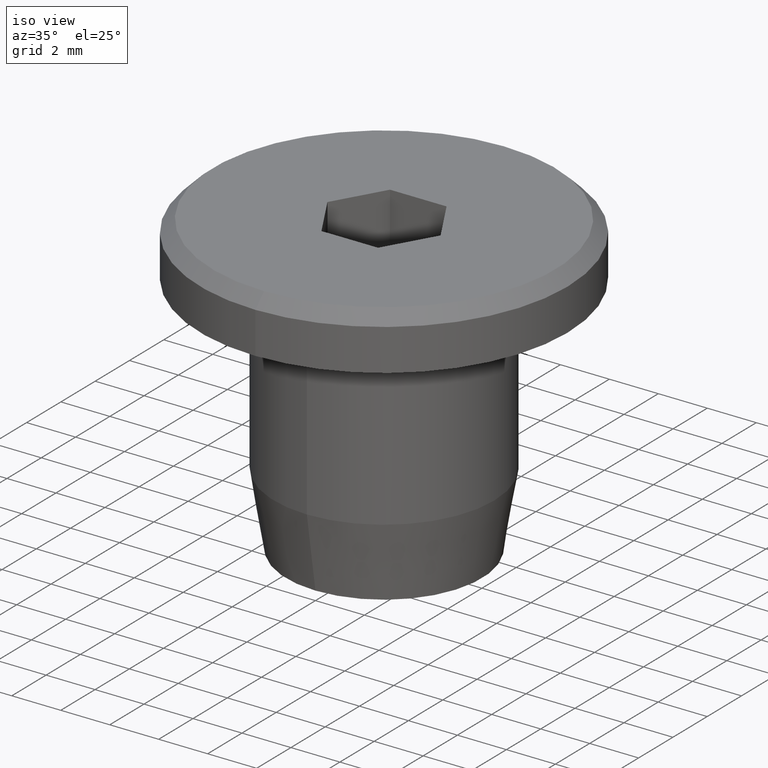
[diagram: clean part render]
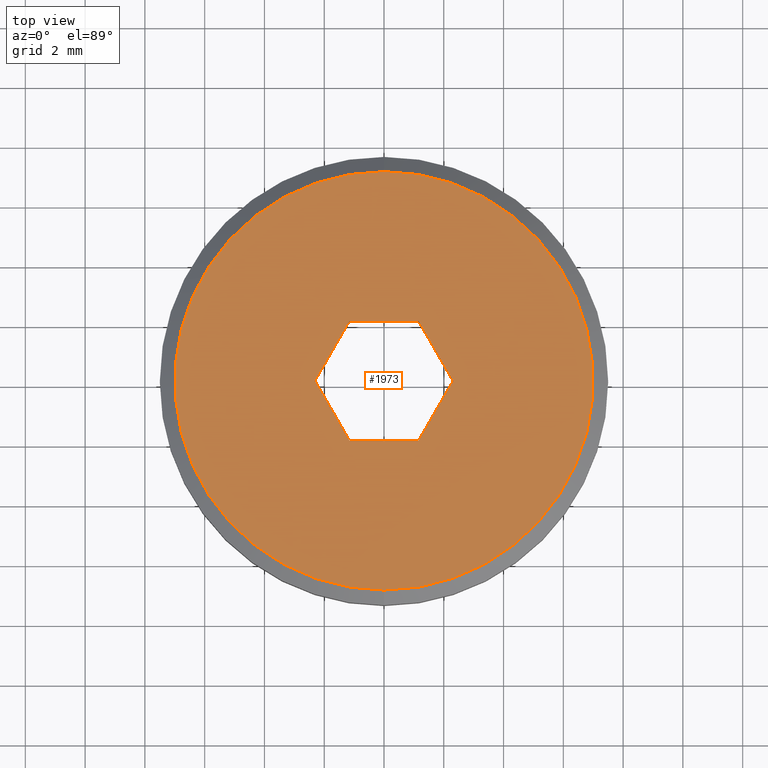
[diagram: tour spotlight — one face highlighted and labeled with its STEP entity id]
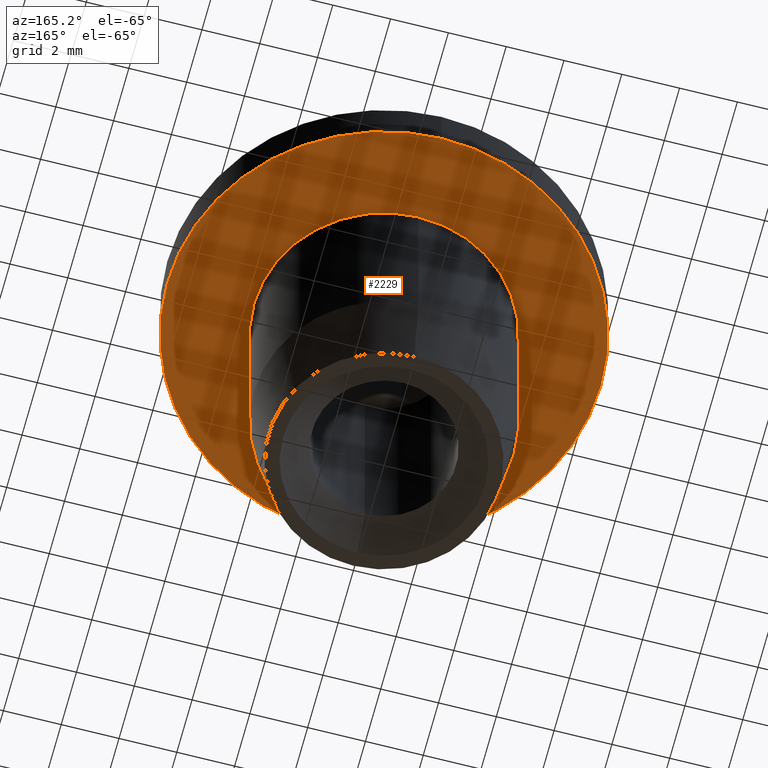
[diagram: tour spotlight — one face highlighted and labeled with its STEP entity id]
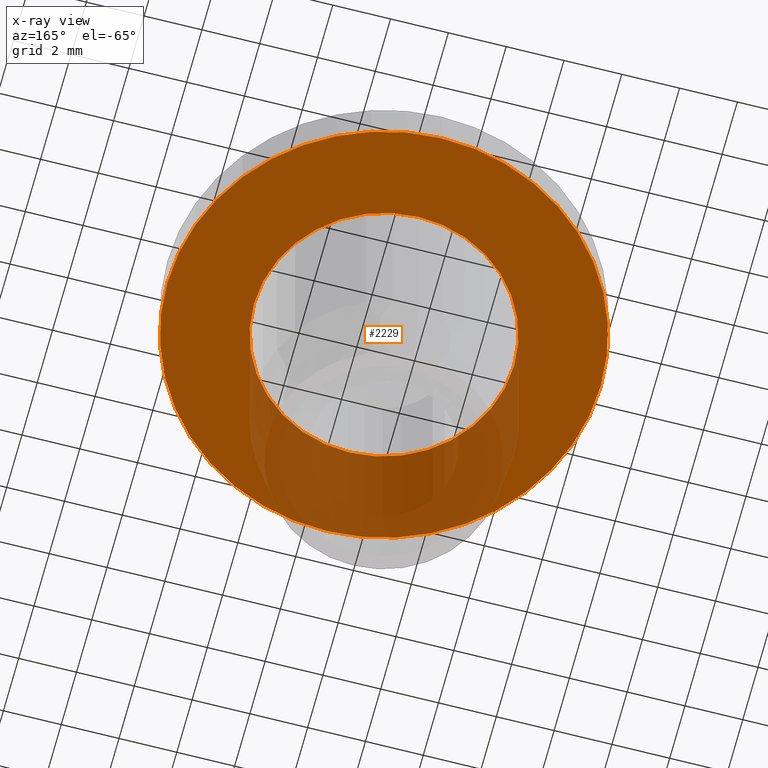
[diagram: x-ray of the same camera — body ghosted, this tour face saturated]
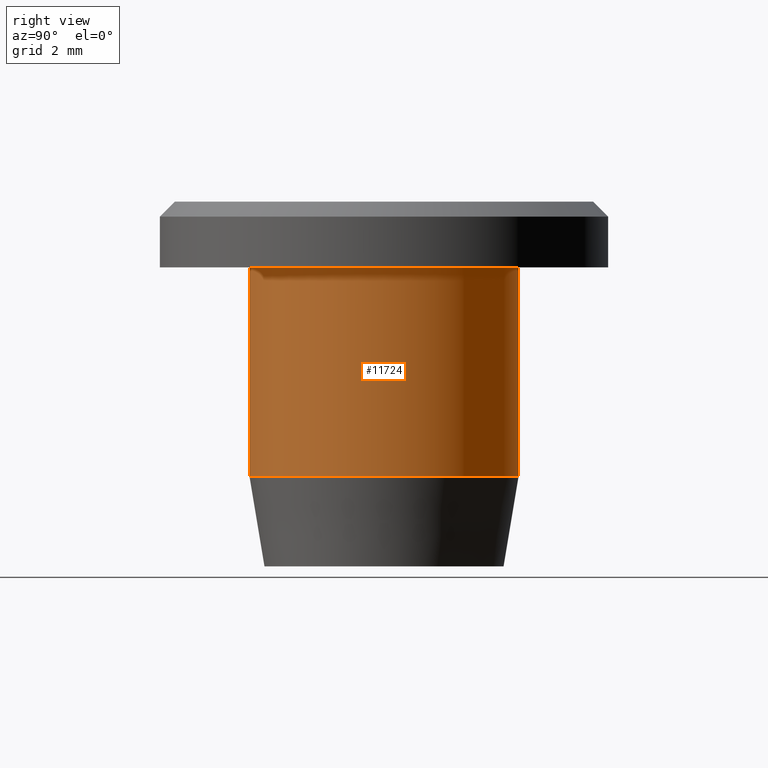
[diagram: tour spotlight — one face highlighted and labeled with its STEP entity id]
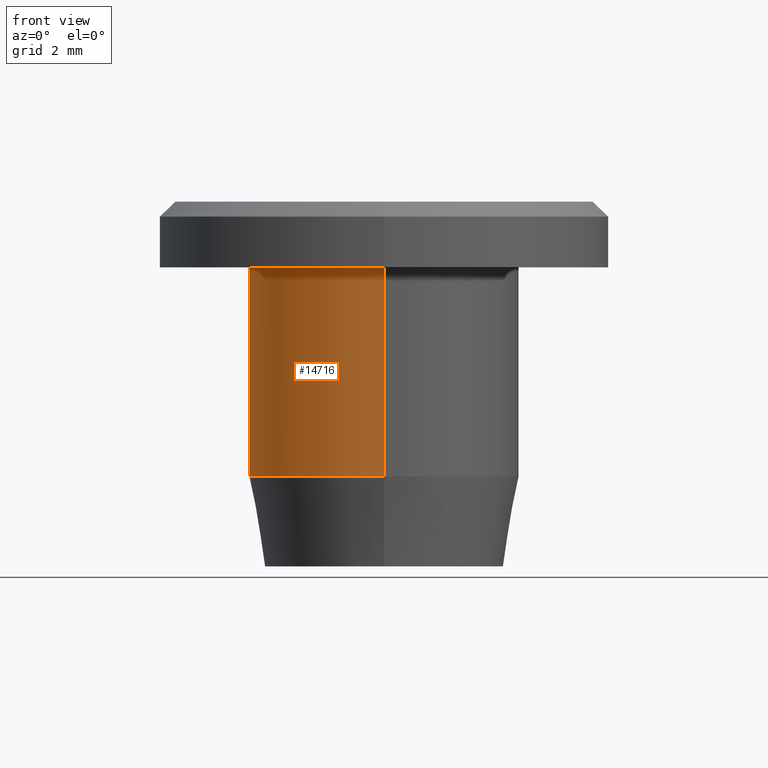
[diagram: tour spotlight — one face highlighted and labeled with its STEP entity id]
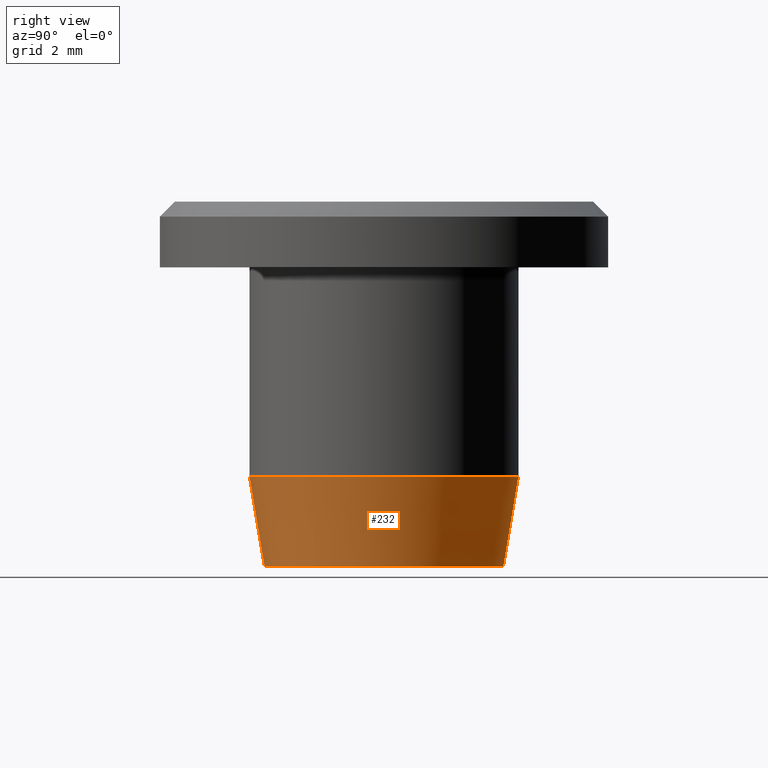
[diagram: tour spotlight — one face highlighted and labeled with its STEP entity id]
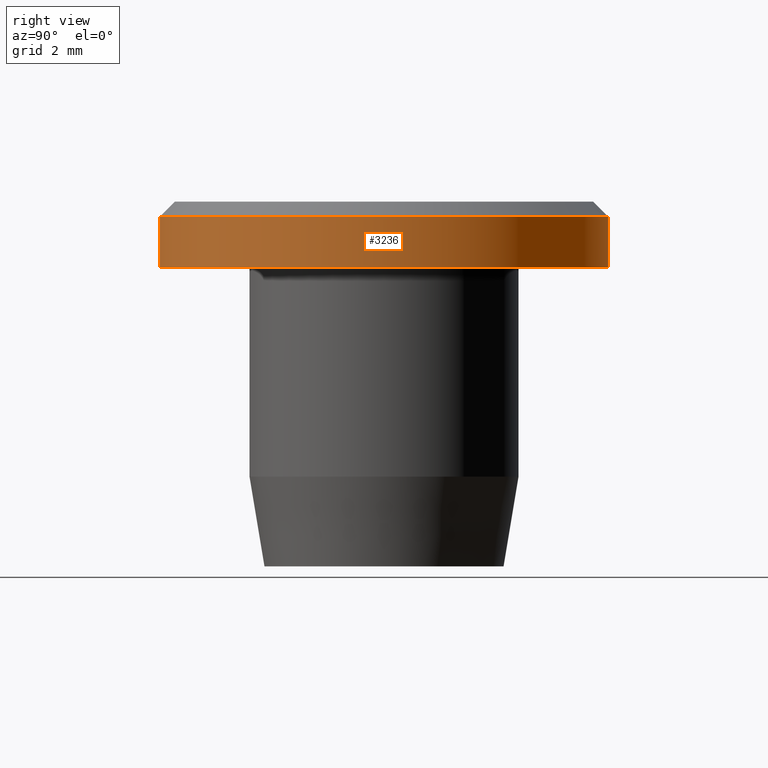
[diagram: tour spotlight — one face highlighted and labeled with its STEP entity id]
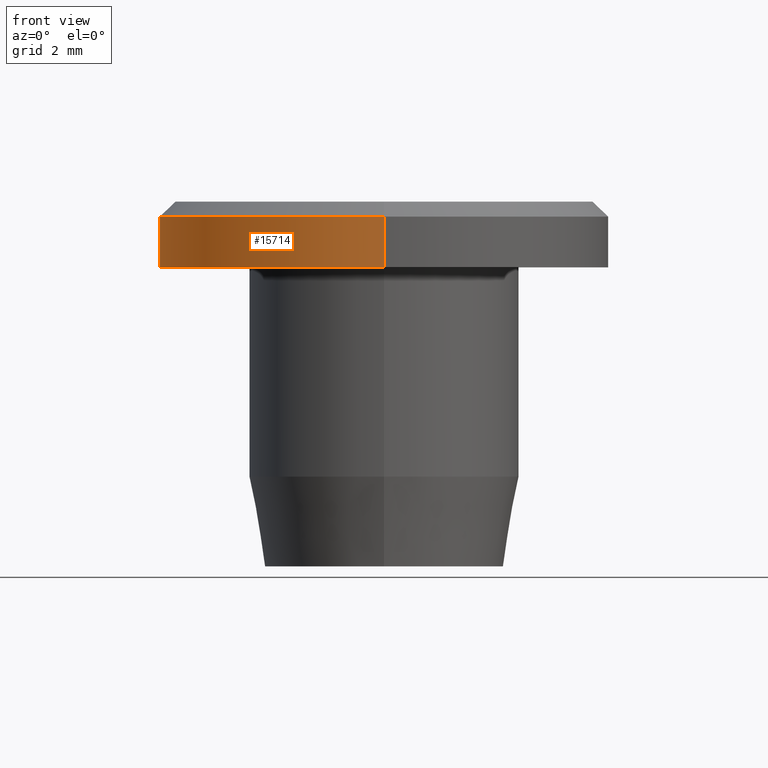
[diagram: tour spotlight — one face highlighted and labeled with its STEP entity id]
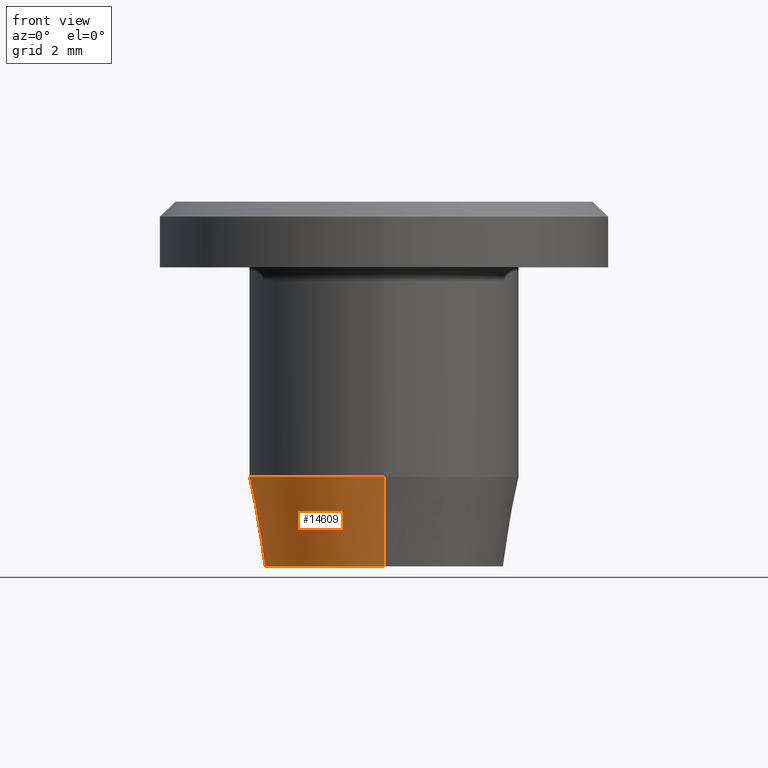
[diagram: tour spotlight — one face highlighted and labeled with its STEP entity id]
A machine part: a face-by-face anatomy tour. The part has 290 B-rep faces; the first image is the clean iso view, then the 8 largest visible faces are spotlighted one at a time (largest first), each with its STEP entity span.

Face 1 — top view, entity #1973. In plain terms, the highlighted planar face has unit normal (0, -0, 1).
Definition (entity closure, byte-faithful):
#157 = DIRECTION ( 'NONE',  ( 0.0000000000000000000, -1.000000000000000000, -3.717264591378871700E-016 ) ) ;
#389 = VERTEX_POINT ( 'NONE', #4939 ) ;
#730 = EDGE_CURVE ( 'NONE', #4751, #11379, #7446, .T. ) ;
#884 = CARTESIAN_POINT ( 'NONE',  ( 2.309401076758503400, 6.534703300250253200E-016, 6.100000000000000500 ) ) ;
#979 = ORIENTED_EDGE ( 'NONE', *, *, #5707, .F. ) ;
#1537 = LINE ( 'NONE', #11249, #13631 ) ;
#1731 = VERTEX_POINT ( 'NONE', #5349 ) ;
#1762 = CARTESIAN_POINT ( 'NONE',  ( -1.154700538379251500, 1.999999999999999600, 6.100000000000000500 ) ) ;
#1813 = DIRECTION ( 'NONE',  ( -0.5000000000000003300, -0.8660254037844384900, 0.0000000000000000000 ) ) ;
#1973 = ADVANCED_FACE ( 'NONE', ( #13743, #15738 ), #15400, .T. ) ;
#2067 = EDGE_CURVE ( 'NONE', #6120, #7556, #9584, .T. ) ;
#2198 = CARTESIAN_POINT ( 'NONE',  ( -2.309401076758503400, 4.688826351693261900E-016, 6.100000000000000500 ) ) ;
#2305 = CARTESIAN_POINT ( 'NONE',  ( 8.878689293818312000E-016, -7.000000000000001800, 6.099999999999997900 ) ) ;
#2729 = DIRECTION ( 'NONE',  ( 0.0000000000000000000, -3.466407542334334500E-016, 1.000000000000000000 ) ) ;
#3276 = AXIS2_PLACEMENT_3D ( 'NONE', #4072, #2729, #157 ) ;
#3325 = CARTESIAN_POINT ( 'NONE',  ( -1.154700538379251200, -1.999999999999999600, 6.100000000000000500 ) ) ;
#3541 = DIRECTION ( 'NONE',  ( 0.4999999999999999400, 0.8660254037844387100, 0.0000000000000000000 ) ) ;
#4072 = CARTESIAN_POINT ( 'NONE',  ( 0.0000000000000000000, -1.255262969126036500E-015, 6.100000000000000500 ) ) ;
#4148 = CARTESIAN_POINT ( 'NONE',  ( 0.0000000000000000000, -1.255262969126036600E-015, 6.100000000000000500 ) ) ;
#4595 = EDGE_CURVE ( 'NONE', #11659, #389, #7631, .T. ) ;
#4751 = VERTEX_POINT ( 'NONE', #3325 ) ;
#4939 = CARTESIAN_POINT ( 'NONE',  ( 0.0000000000000000000, 7.000000000000000000, 6.100000000000003200 ) ) ;
#5230 = EDGE_CURVE ( 'NONE', #389, #11659, #8237, .T. ) ;
#5349 = CARTESIAN_POINT ( 'NONE',  ( 2.309401076758503400, 6.534703300250253200E-016, 6.100000000000000500 ) ) ;
#5685 = CARTESIAN_POINT ( 'NONE',  ( 1.154700538379251700, 2.000000000000000400, 6.100000000000000500 ) ) ;
#5707 = EDGE_CURVE ( 'NONE', #11379, #1731, #1537, .T. ) ;
#6120 = VERTEX_POINT ( 'NONE', #5685 ) ;
#6191 = LINE ( 'NONE', #2198, #12521 ) ;
#6250 = EDGE_CURVE ( 'NONE', #1731, #6120, #9860, .T. ) ;
#6311 = VECTOR ( 'NONE', #12423, 1000.000000000000200 ) ;
#7307 = DIRECTION ( 'NONE',  ( 0.0000000000000000000, -3.466407542334334500E-016, 1.000000000000000000 ) ) ;
#7446 = LINE ( 'NONE', #10958, #8248 ) ;
#7556 = VERTEX_POINT ( 'NONE', #9125 ) ;
#7631 = CIRCLE ( 'NONE', #3276, 7.000000000000000900 ) ;
#7768 = DIRECTION ( 'NONE',  ( 0.5000000000000002200, -0.8660254037844384900, 0.0000000000000000000 ) ) ;
#7954 = EDGE_LOOP ( 'NONE', ( #16172, #10532, #15274, #14192, #15716, #979 ) ) ;
#8217 = VECTOR ( 'NONE', #14811, 1000.000000000000000 ) ;
#8237 = CIRCLE ( 'NONE', #12070, 7.000000000000000900 ) ;
#8248 = VECTOR ( 'NONE', #8366, 1000.000000000000000 ) ;
#8366 = DIRECTION ( 'NONE',  ( 1.000000000000000000, 0.0000000000000000000, 0.0000000000000000000 ) ) ;
#8583 = CARTESIAN_POINT ( 'NONE',  ( 0.0000000000000000000, -1.255262969126036500E-015, 6.100000000000000500 ) ) ;
#8711 = CARTESIAN_POINT ( 'NONE',  ( 1.154700538379251700, -1.999999999999999600, 6.100000000000000500 ) ) ;
#9125 = CARTESIAN_POINT ( 'NONE',  ( -1.154700538379251500, 1.999999999999999600, 6.100000000000000500 ) ) ;
#9584 = LINE ( 'NONE', #10793, #8217 ) ;
#9827 = CARTESIAN_POINT ( 'NONE',  ( -2.309401076758503400, 4.688826351693261900E-016, 6.100000000000000500 ) ) ;
#9860 = LINE ( 'NONE', #884, #6311 ) ;
#9931 = EDGE_CURVE ( 'NONE', #14541, #4751, #6191, .T. ) ;
#10447 = ORIENTED_EDGE ( 'NONE', *, *, #5230, .T. ) ;
#10532 = ORIENTED_EDGE ( 'NONE', *, *, #9931, .F. ) ;
#10793 = CARTESIAN_POINT ( 'NONE',  ( 1.154700538379251700, 2.000000000000000400, 6.100000000000000500 ) ) ;
#10958 = CARTESIAN_POINT ( 'NONE',  ( -1.154700538379251200, -1.999999999999999600, 6.100000000000000500 ) ) ;
#10984 = EDGE_LOOP ( 'NONE', ( #10447, #11116 ) ) ;
#11116 = ORIENTED_EDGE ( 'NONE', *, *, #4595, .T. ) ;
#11249 = CARTESIAN_POINT ( 'NONE',  ( 1.154700538379251700, -1.999999999999999600, 6.100000000000000500 ) ) ;
#11379 = VERTEX_POINT ( 'NONE', #8711 ) ;
#11659 = VERTEX_POINT ( 'NONE', #2305 ) ;
#11728 = DIRECTION ( 'NONE',  ( 0.0000000000000000000, -3.466407542334334500E-016, 1.000000000000000000 ) ) ;
#12070 = AXIS2_PLACEMENT_3D ( 'NONE', #8583, #7307, #14713 ) ;
#12423 = DIRECTION ( 'NONE',  ( -0.5000000000000001100, 0.8660254037844384900, 0.0000000000000000000 ) ) ;
#12521 = VECTOR ( 'NONE', #7768, 1000.000000000000100 ) ;
#12957 = DIRECTION ( 'NONE',  ( 0.0000000000000000000, -1.000000000000000000, -3.466407542334334500E-016 ) ) ;
#13616 = VECTOR ( 'NONE', #1813, 1000.000000000000100 ) ;
#13629 = EDGE_CURVE ( 'NONE', #7556, #14541, #13801, .T. ) ;
#13631 = VECTOR ( 'NONE', #3541, 1000.000000000000000 ) ;
#13743 = FACE_OUTER_BOUND ( 'NONE', #10984, .T. ) ;
#13801 = LINE ( 'NONE', #1762, #13616 ) ;
#14192 = ORIENTED_EDGE ( 'NONE', *, *, #2067, .F. ) ;
#14541 = VERTEX_POINT ( 'NONE', #9827 ) ;
#14713 = DIRECTION ( 'NONE',  ( 0.0000000000000000000, -1.000000000000000000, -3.717264591378871700E-016 ) ) ;
#14811 = DIRECTION ( 'NONE',  ( -1.000000000000000000, -3.755786496842898100E-016, 0.0000000000000000000 ) ) ;
#15274 = ORIENTED_EDGE ( 'NONE', *, *, #13629, .F. ) ;
#15400 = PLANE ( 'NONE',  #16200 ) ;
#15716 = ORIENTED_EDGE ( 'NONE', *, *, #6250, .F. ) ;
#15738 = FACE_BOUND ( 'NONE', #7954, .T. ) ;
#16172 = ORIENTED_EDGE ( 'NONE', *, *, #730, .F. ) ;
#16200 = AXIS2_PLACEMENT_3D ( 'NONE', #4148, #11728, #12957 ) ;

Face 2 — auxiliary view, entity #2229. An x-ray twin of the same camera follows (body ghosted, this face saturated) — the face is partly hidden behind the body. In plain terms, the highlighted planar face has unit normal (-0, 0, -1).
Definition (entity closure, byte-faithful):
#792 = VERTEX_POINT ( 'NONE', #11231 ) ;
#864 = CARTESIAN_POINT ( 'NONE',  ( 9.184850993605149900E-016, -7.500000000000001800, 3.899999999999996400 ) ) ;
#928 = DIRECTION ( 'NONE',  ( 0.0000000000000000000, 1.000000000000000000, 3.854941057726231700E-016 ) ) ;
#1461 = CARTESIAN_POINT ( 'NONE',  ( 0.0000000000000000000, -4.926533098124824600E-016, 3.899999999999999000 ) ) ;
#1767 = EDGE_LOOP ( 'NONE', ( #14435, #10717 ) ) ;
#2051 = CARTESIAN_POINT ( 'NONE',  ( 0.0000000000000000000, -4.926533098124824600E-016, 3.899999999999999000 ) ) ;
#2229 = ADVANCED_FACE ( 'NONE', ( #15931, #3238 ), #10175, .T. ) ;
#2277 = EDGE_CURVE ( 'NONE', #13078, #4945, #12966, .T. ) ;
#2491 = EDGE_CURVE ( 'NONE', #4945, #13078, #8611, .T. ) ;
#2812 = CIRCLE ( 'NONE', #7320, 7.500000000000000900 ) ;
#3238 = FACE_BOUND ( 'NONE', #14763, .T. ) ;
#4216 = EDGE_CURVE ( 'NONE', #792, #11248, #2812, .T. ) ;
#4734 = DIRECTION ( 'NONE',  ( -0.0000000000000000000, 3.466407542334334500E-016, -1.000000000000000000 ) ) ;
#4945 = VERTEX_POINT ( 'NONE', #7610 ) ;
#5025 = DIRECTION ( 'NONE',  ( 0.0000000000000000000, 1.000000000000000000, 3.466407542334334500E-016 ) ) ;
#5353 = DIRECTION ( 'NONE',  ( 0.0000000000000000000, 1.000000000000000000, 3.854941057726231700E-016 ) ) ;
#7251 = ORIENTED_EDGE ( 'NONE', *, *, #2491, .F. ) ;
#7320 = AXIS2_PLACEMENT_3D ( 'NONE', #13879, #16435, #15164 ) ;
#7461 = CARTESIAN_POINT ( 'NONE',  ( 5.510910596163100400E-016, -4.500000000000008000, 3.899999999999997200 ) ) ;
#7610 = CARTESIAN_POINT ( 'NONE',  ( 0.0000000000000000000, 4.500000000000006200, 3.900000000000000800 ) ) ;
#8554 = DIRECTION ( 'NONE',  ( -0.0000000000000000000, 3.466407542334334500E-016, -1.000000000000000000 ) ) ;
#8611 = CIRCLE ( 'NONE', #9319, 4.500000000000007100 ) ;
#8958 = CARTESIAN_POINT ( 'NONE',  ( 0.0000000000000000000, 7.500000000000000000, 3.900000000000001200 ) ) ;
#9015 = AXIS2_PLACEMENT_3D ( 'NONE', #1461, #14261, #5353 ) ;
#9319 = AXIS2_PLACEMENT_3D ( 'NONE', #16132, #8554, #928 ) ;
#10065 = DIRECTION ( 'NONE',  ( -0.0000000000000000000, 3.466407542334334500E-016, -1.000000000000000000 ) ) ;
#10175 = PLANE ( 'NONE',  #13973 ) ;
#10717 = ORIENTED_EDGE ( 'NONE', *, *, #15299, .T. ) ;
#10933 = DIRECTION ( 'NONE',  ( 0.0000000000000000000, 1.000000000000000000, 3.469446951953613700E-016 ) ) ;
#11231 = CARTESIAN_POINT ( 'NONE',  ( 0.0000000000000000000, 7.500000000000000000, 3.900000000000001700 ) ) ;
#11248 = VERTEX_POINT ( 'NONE', #864 ) ;
#12921 = CIRCLE ( 'NONE', #16020, 7.500000000000000900 ) ;
#12966 = CIRCLE ( 'NONE', #9015, 4.500000000000007100 ) ;
#13078 = VERTEX_POINT ( 'NONE', #7461 ) ;
#13879 = CARTESIAN_POINT ( 'NONE',  ( 0.0000000000000000000, -4.926533098124824600E-016, 3.899999999999999000 ) ) ;
#13973 = AXIS2_PLACEMENT_3D ( 'NONE', #8958, #10065, #5025 ) ;
#14261 = DIRECTION ( 'NONE',  ( -0.0000000000000000000, 3.466407542334334500E-016, -1.000000000000000000 ) ) ;
#14435 = ORIENTED_EDGE ( 'NONE', *, *, #4216, .T. ) ;
#14763 = EDGE_LOOP ( 'NONE', ( #7251, #14908 ) ) ;
#14908 = ORIENTED_EDGE ( 'NONE', *, *, #2277, .F. ) ;
#15164 = DIRECTION ( 'NONE',  ( 0.0000000000000000000, 1.000000000000000000, 3.469446951953613700E-016 ) ) ;
#15299 = EDGE_CURVE ( 'NONE', #11248, #792, #12921, .T. ) ;
#15931 = FACE_OUTER_BOUND ( 'NONE', #1767, .T. ) ;
#16020 = AXIS2_PLACEMENT_3D ( 'NONE', #2051, #4734, #10933 ) ;
#16132 = CARTESIAN_POINT ( 'NONE',  ( 0.0000000000000000000, -4.926533098124824600E-016, 3.899999999999999000 ) ) ;
#16435 = DIRECTION ( 'NONE',  ( -0.0000000000000000000, 3.466407542334334500E-016, -1.000000000000000000 ) ) ;

Face 3 — right view, entity #11724. In plain terms, the highlighted cylindrical surface (partial cylindrical patch) has radius 4.5 mm, axis along (-0, 0, -1).
Definition (entity closure, byte-faithful):
#73 = VECTOR ( 'NONE', #2681, 1000.000000000000000 ) ;
#638 = VERTEX_POINT ( 'NONE', #2817 ) ;
#906 = DIRECTION ( 'NONE',  ( 0.0000000000000000000, 1.000000000000000000, 3.854941057726233700E-016 ) ) ;
#928 = DIRECTION ( 'NONE',  ( 0.0000000000000000000, 1.000000000000000000, 3.854941057726231700E-016 ) ) ;
#1232 = VECTOR ( 'NONE', #10833, 1000.000000000000000 ) ;
#1405 = CARTESIAN_POINT ( 'NONE',  ( 0.0000000000000000000, 4.500000000000008000, -6.099999999999999600 ) ) ;
#1419 = DIRECTION ( 'NONE',  ( 0.0000000000000000000, -3.466407542334335000E-016, 1.000000000000000000 ) ) ;
#2113 = CARTESIAN_POINT ( 'NONE',  ( 5.510910596163096500E-016, -4.500000000000003600, -6.100000000000003200 ) ) ;
#2491 = EDGE_CURVE ( 'NONE', #4945, #13078, #8611, .T. ) ;
#2681 = DIRECTION ( 'NONE',  ( -0.0000000000000000000, 3.466407542334334500E-016, -1.000000000000000000 ) ) ;
#2817 = CARTESIAN_POINT ( 'NONE',  ( 0.0000000000000000000, 4.500000000000007100, -3.099999999999806000 ) ) ;
#3678 = LINE ( 'NONE', #1405, #73 ) ;
#4207 = DIRECTION ( 'NONE',  ( 0.0000000000000000000, 1.000000000000000000, 3.854941057726233700E-016 ) ) ;
#4654 = CARTESIAN_POINT ( 'NONE',  ( 0.0000000000000000000, 2.973754232521852100E-015, -6.100000000000001400 ) ) ;
#4945 = VERTEX_POINT ( 'NONE', #7610 ) ;
#6049 = FACE_OUTER_BOUND ( 'NONE', #16422, .T. ) ;
#6651 = CARTESIAN_POINT ( 'NONE',  ( 0.0000000000000000000, 1.933831969821484500E-015, -3.099999999999807800 ) ) ;
#6892 = CIRCLE ( 'NONE', #13397, 4.500000000000005300 ) ;
#7190 = LINE ( 'NONE', #2113, #1232 ) ;
#7461 = CARTESIAN_POINT ( 'NONE',  ( 5.510910596163100400E-016, -4.500000000000008000, 3.899999999999997200 ) ) ;
#7610 = CARTESIAN_POINT ( 'NONE',  ( 0.0000000000000000000, 4.500000000000006200, 3.900000000000000800 ) ) ;
#8554 = DIRECTION ( 'NONE',  ( -0.0000000000000000000, 3.466407542334334500E-016, -1.000000000000000000 ) ) ;
#8611 = CIRCLE ( 'NONE', #9319, 4.500000000000007100 ) ;
#9243 = EDGE_CURVE ( 'NONE', #4945, #638, #3678, .T. ) ;
#9319 = AXIS2_PLACEMENT_3D ( 'NONE', #16132, #8554, #928 ) ;
#9740 = DIRECTION ( 'NONE',  ( -0.0000000000000000000, 3.466407542334334500E-016, -1.000000000000000000 ) ) ;
#10637 = AXIS2_PLACEMENT_3D ( 'NONE', #4654, #9740, #906 ) ;
#10833 = DIRECTION ( 'NONE',  ( -0.0000000000000000000, 3.466407542334334500E-016, -1.000000000000000000 ) ) ;
#10898 = EDGE_CURVE ( 'NONE', #13078, #12661, #7190, .T. ) ;
#11724 = ADVANCED_FACE ( 'NONE', ( #6049 ), #15169, .T. ) ;
#12343 = ORIENTED_EDGE ( 'NONE', *, *, #12696, .T. ) ;
#12661 = VERTEX_POINT ( 'NONE', #13998 ) ;
#12696 = EDGE_CURVE ( 'NONE', #12661, #638, #6892, .T. ) ;
#13078 = VERTEX_POINT ( 'NONE', #7461 ) ;
#13082 = ORIENTED_EDGE ( 'NONE', *, *, #2491, .T. ) ;
#13397 = AXIS2_PLACEMENT_3D ( 'NONE', #6651, #1419, #4207 ) ;
#13862 = ORIENTED_EDGE ( 'NONE', *, *, #10898, .T. ) ;
#13998 = CARTESIAN_POINT ( 'NONE',  ( 5.510910596163096500E-016, -4.500000000000003600, -3.099999999999809600 ) ) ;
#15169 = CYLINDRICAL_SURFACE ( 'NONE', #10637, 4.500000000000005300 ) ;
#16018 = ORIENTED_EDGE ( 'NONE', *, *, #9243, .F. ) ;
#16132 = CARTESIAN_POINT ( 'NONE',  ( 0.0000000000000000000, -4.926533098124824600E-016, 3.899999999999999000 ) ) ;
#16422 = EDGE_LOOP ( 'NONE', ( #13082, #13862, #12343, #16018 ) ) ;

Face 4 — front view, entity #14716. In plain terms, the highlighted cylindrical surface (partial cylindrical patch) has radius 4.5 mm, axis along (-0, 0, -1).
Definition (entity closure, byte-faithful):
#73 = VECTOR ( 'NONE', #2681, 1000.000000000000000 ) ;
#638 = VERTEX_POINT ( 'NONE', #2817 ) ;
#1232 = VECTOR ( 'NONE', #10833, 1000.000000000000000 ) ;
#1405 = CARTESIAN_POINT ( 'NONE',  ( 0.0000000000000000000, 4.500000000000008000, -6.099999999999999600 ) ) ;
#1461 = CARTESIAN_POINT ( 'NONE',  ( 0.0000000000000000000, -4.926533098124824600E-016, 3.899999999999999000 ) ) ;
#2113 = CARTESIAN_POINT ( 'NONE',  ( 5.510910596163096500E-016, -4.500000000000003600, -6.100000000000003200 ) ) ;
#2167 = CARTESIAN_POINT ( 'NONE',  ( 0.0000000000000000000, 1.933831969821484500E-015, -3.099999999999807800 ) ) ;
#2277 = EDGE_CURVE ( 'NONE', #13078, #4945, #12966, .T. ) ;
#2377 = ORIENTED_EDGE ( 'NONE', *, *, #8800, .T. ) ;
#2433 = ORIENTED_EDGE ( 'NONE', *, *, #9243, .T. ) ;
#2638 = ORIENTED_EDGE ( 'NONE', *, *, #2277, .T. ) ;
#2681 = DIRECTION ( 'NONE',  ( -0.0000000000000000000, 3.466407542334334500E-016, -1.000000000000000000 ) ) ;
#2817 = CARTESIAN_POINT ( 'NONE',  ( 0.0000000000000000000, 4.500000000000007100, -3.099999999999806000 ) ) ;
#2992 = DIRECTION ( 'NONE',  ( 0.0000000000000000000, 1.000000000000000000, 3.854941057726233700E-016 ) ) ;
#3395 = AXIS2_PLACEMENT_3D ( 'NONE', #2167, #12189, #14746 ) ;
#3678 = LINE ( 'NONE', #1405, #73 ) ;
#4945 = VERTEX_POINT ( 'NONE', #7610 ) ;
#5353 = DIRECTION ( 'NONE',  ( 0.0000000000000000000, 1.000000000000000000, 3.854941057726231700E-016 ) ) ;
#5818 = EDGE_LOOP ( 'NONE', ( #11076, #2638, #2433, #2377 ) ) ;
#6203 = AXIS2_PLACEMENT_3D ( 'NONE', #14026, #10273, #2992 ) ;
#6789 = FACE_OUTER_BOUND ( 'NONE', #5818, .T. ) ;
#7190 = LINE ( 'NONE', #2113, #1232 ) ;
#7461 = CARTESIAN_POINT ( 'NONE',  ( 5.510910596163100400E-016, -4.500000000000008000, 3.899999999999997200 ) ) ;
#7610 = CARTESIAN_POINT ( 'NONE',  ( 0.0000000000000000000, 4.500000000000006200, 3.900000000000000800 ) ) ;
#8800 = EDGE_CURVE ( 'NONE', #638, #12661, #12379, .T. ) ;
#9015 = AXIS2_PLACEMENT_3D ( 'NONE', #1461, #14261, #5353 ) ;
#9243 = EDGE_CURVE ( 'NONE', #4945, #638, #3678, .T. ) ;
#9354 = CYLINDRICAL_SURFACE ( 'NONE', #6203, 4.500000000000005300 ) ;
#10273 = DIRECTION ( 'NONE',  ( -0.0000000000000000000, 3.466407542334334500E-016, -1.000000000000000000 ) ) ;
#10833 = DIRECTION ( 'NONE',  ( -0.0000000000000000000, 3.466407542334334500E-016, -1.000000000000000000 ) ) ;
#10898 = EDGE_CURVE ( 'NONE', #13078, #12661, #7190, .T. ) ;
#11076 = ORIENTED_EDGE ( 'NONE', *, *, #10898, .F. ) ;
#12189 = DIRECTION ( 'NONE',  ( 0.0000000000000000000, -3.466407542334335000E-016, 1.000000000000000000 ) ) ;
#12379 = CIRCLE ( 'NONE', #3395, 4.500000000000005300 ) ;
#12661 = VERTEX_POINT ( 'NONE', #13998 ) ;
#12966 = CIRCLE ( 'NONE', #9015, 4.500000000000007100 ) ;
#13078 = VERTEX_POINT ( 'NONE', #7461 ) ;
#13998 = CARTESIAN_POINT ( 'NONE',  ( 5.510910596163096500E-016, -4.500000000000003600, -3.099999999999809600 ) ) ;
#14026 = CARTESIAN_POINT ( 'NONE',  ( 0.0000000000000000000, 2.973754232521852100E-015, -6.100000000000001400 ) ) ;
#14261 = DIRECTION ( 'NONE',  ( -0.0000000000000000000, 3.466407542334334500E-016, -1.000000000000000000 ) ) ;
#14716 = ADVANCED_FACE ( 'NONE', ( #6789 ), #9354, .T. ) ;
#14746 = DIRECTION ( 'NONE',  ( 0.0000000000000000000, 1.000000000000000000, 3.854941057726233700E-016 ) ) ;

Face 5 — right view, entity #232. In plain terms, the highlighted conical surface has half-angle 9.462 deg.
Definition (entity closure, byte-faithful):
#83 = FACE_OUTER_BOUND ( 'NONE', #10632, .T. ) ;
#110 = ORIENTED_EDGE ( 'NONE', *, *, #12696, .F. ) ;
#232 = ADVANCED_FACE ( 'NONE', ( #83 ), #3076, .T. ) ;
#256 = VECTOR ( 'NONE', #6160, 1000.000000000000000 ) ;
#638 = VERTEX_POINT ( 'NONE', #2817 ) ;
#1419 = DIRECTION ( 'NONE',  ( 0.0000000000000000000, -3.466407542334335000E-016, 1.000000000000000000 ) ) ;
#1442 = DIRECTION ( 'NONE',  ( 0.0000000000000000000, 1.000000000000000000, 4.336808689942036500E-016 ) ) ;
#1667 = CARTESIAN_POINT ( 'NONE',  ( 0.0000000000000000000, 2.973754232521852100E-015, -6.100000000000001400 ) ) ;
#1721 = DIRECTION ( 'NONE',  ( 0.0000000000000000000, -3.466407542334335000E-016, 1.000000000000000000 ) ) ;
#2120 = CARTESIAN_POINT ( 'NONE',  ( 0.0000000000000000000, -3.999999999999980000, -6.100000000000003200 ) ) ;
#2664 = DIRECTION ( 'NONE',  ( -0.0000000000000000000, 3.466407542334334500E-016, -1.000000000000000000 ) ) ;
#2817 = CARTESIAN_POINT ( 'NONE',  ( 0.0000000000000000000, 4.500000000000007100, -3.099999999999806000 ) ) ;
#3076 = CONICAL_SURFACE ( 'NONE', #15981, 3.999999999999982700, 0.1651486774146238300 ) ;
#4207 = DIRECTION ( 'NONE',  ( 0.0000000000000000000, 1.000000000000000000, 3.854941057726233700E-016 ) ) ;
#4385 = ORIENTED_EDGE ( 'NONE', *, *, #15403, .F. ) ;
#4846 = EDGE_CURVE ( 'NONE', #11878, #638, #9201, .T. ) ;
#5028 = ORIENTED_EDGE ( 'NONE', *, *, #4846, .T. ) ;
#5715 = DIRECTION ( 'NONE',  ( 0.0000000000000000000, -1.000000000000000000, -4.336808689942036500E-016 ) ) ;
#6160 = DIRECTION ( 'NONE',  ( 2.013306935865685300E-017, 0.1643989873053539900, 0.9863939238321443000 ) ) ;
#6348 = ORIENTED_EDGE ( 'NONE', *, *, #14022, .F. ) ;
#6651 = CARTESIAN_POINT ( 'NONE',  ( 0.0000000000000000000, 1.933831969821484500E-015, -3.099999999999807800 ) ) ;
#6892 = CIRCLE ( 'NONE', #13397, 4.500000000000005300 ) ;
#8333 = CARTESIAN_POINT ( 'NONE',  ( 5.204748896376243800E-016, 3.999999999999985300, -6.099999999999999600 ) ) ;
#8931 = AXIS2_PLACEMENT_3D ( 'NONE', #8996, #2664, #1442 ) ;
#8996 = CARTESIAN_POINT ( 'NONE',  ( 0.0000000000000000000, 2.973754232521852100E-015, -6.100000000000001400 ) ) ;
#9148 = CIRCLE ( 'NONE', #8931, 3.999999999999982700 ) ;
#9170 = VECTOR ( 'NONE', #16034, 1000.000000000000100 ) ;
#9201 = LINE ( 'NONE', #9923, #256 ) ;
#9923 = CARTESIAN_POINT ( 'NONE',  ( 4.898587196589391100E-016, 3.999999999999985300, -6.099999999999999600 ) ) ;
#10632 = EDGE_LOOP ( 'NONE', ( #4385, #5028, #110, #6348 ) ) ;
#11165 = CARTESIAN_POINT ( 'NONE',  ( 0.0000000000000000000, -3.999999999999980000, -6.100000000000003200 ) ) ;
#11878 = VERTEX_POINT ( 'NONE', #8333 ) ;
#12539 = LINE ( 'NONE', #2120, #9170 ) ;
#12661 = VERTEX_POINT ( 'NONE', #13998 ) ;
#12696 = EDGE_CURVE ( 'NONE', #12661, #638, #6892, .T. ) ;
#13397 = AXIS2_PLACEMENT_3D ( 'NONE', #6651, #1419, #4207 ) ;
#13998 = CARTESIAN_POINT ( 'NONE',  ( 5.510910596163096500E-016, -4.500000000000003600, -3.099999999999809600 ) ) ;
#14022 = EDGE_CURVE ( 'NONE', #16245, #12661, #12539, .T. ) ;
#15403 = EDGE_CURVE ( 'NONE', #11878, #16245, #9148, .T. ) ;
#15981 = AXIS2_PLACEMENT_3D ( 'NONE', #1667, #1721, #5715 ) ;
#16034 = DIRECTION ( 'NONE',  ( 0.0000000000000000000, -0.1643989873053546800, 0.9863939238321441900 ) ) ;
#16245 = VERTEX_POINT ( 'NONE', #11165 ) ;

Face 6 — right view, entity #3236. In plain terms, the highlighted cylindrical surface (partial cylindrical patch) has radius 7.5 mm, axis along (-0, 0, -1).
Definition (entity closure, byte-faithful):
#398 = DIRECTION ( 'NONE',  ( -0.0000000000000000000, 3.466407542334334500E-016, -1.000000000000000000 ) ) ;
#587 = AXIS2_PLACEMENT_3D ( 'NONE', #12969, #398, #10832 ) ;
#792 = VERTEX_POINT ( 'NONE', #11231 ) ;
#864 = CARTESIAN_POINT ( 'NONE',  ( 9.184850993605149900E-016, -7.500000000000001800, 3.899999999999996400 ) ) ;
#1277 = EDGE_CURVE ( 'NONE', #12704, #11248, #15429, .T. ) ;
#1846 = ORIENTED_EDGE ( 'NONE', *, *, #4216, .F. ) ;
#1913 = DIRECTION ( 'NONE',  ( -0.0000000000000000000, 3.466407542334334500E-016, -1.000000000000000000 ) ) ;
#1929 = AXIS2_PLACEMENT_3D ( 'NONE', #3813, #13878, #7584 ) ;
#2030 = FACE_OUTER_BOUND ( 'NONE', #16313, .T. ) ;
#2475 = DIRECTION ( 'NONE',  ( -0.0000000000000000000, 3.466407542334334500E-016, -1.000000000000000000 ) ) ;
#2812 = CIRCLE ( 'NONE', #7320, 7.500000000000000900 ) ;
#2840 = ORIENTED_EDGE ( 'NONE', *, *, #14175, .T. ) ;
#2971 = CARTESIAN_POINT ( 'NONE',  ( 0.0000000000000000000, 7.500000000000003600, -6.099999999999998800 ) ) ;
#3009 = CIRCLE ( 'NONE', #1929, 7.500000000000000900 ) ;
#3236 = ADVANCED_FACE ( 'NONE', ( #2030 ), #15724, .T. ) ;
#3813 = CARTESIAN_POINT ( 'NONE',  ( 0.0000000000000000000, -1.081942592009320500E-015, 5.600000000000002300 ) ) ;
#4216 = EDGE_CURVE ( 'NONE', #792, #11248, #2812, .T. ) ;
#4822 = ORIENTED_EDGE ( 'NONE', *, *, #1277, .T. ) ;
#5981 = VECTOR ( 'NONE', #1913, 1000.000000000000000 ) ;
#7086 = VECTOR ( 'NONE', #2475, 1000.000000000000000 ) ;
#7320 = AXIS2_PLACEMENT_3D ( 'NONE', #13879, #16435, #15164 ) ;
#7584 = DIRECTION ( 'NONE',  ( 0.0000000000000000000, -1.000000000000000000, -3.469446951953613700E-016 ) ) ;
#8798 = CARTESIAN_POINT ( 'NONE',  ( 0.0000000000000000000, 7.500000000000000000, 5.600000000000005000 ) ) ;
#8816 = CARTESIAN_POINT ( 'NONE',  ( 9.184850993605149900E-016, -7.499999999999998200, -6.100000000000004100 ) ) ;
#9123 = CARTESIAN_POINT ( 'NONE',  ( 9.184850993605149900E-016, -7.500000000000001800, 5.599999999999999600 ) ) ;
#10008 = EDGE_CURVE ( 'NONE', #12243, #792, #15304, .T. ) ;
#10832 = DIRECTION ( 'NONE',  ( 0.0000000000000000000, 1.000000000000000000, 3.469446951953613700E-016 ) ) ;
#11231 = CARTESIAN_POINT ( 'NONE',  ( 0.0000000000000000000, 7.500000000000000000, 3.900000000000001700 ) ) ;
#11248 = VERTEX_POINT ( 'NONE', #864 ) ;
#12243 = VERTEX_POINT ( 'NONE', #8798 ) ;
#12704 = VERTEX_POINT ( 'NONE', #9123 ) ;
#12969 = CARTESIAN_POINT ( 'NONE',  ( 0.0000000000000000000, 2.973754232521852100E-015, -6.100000000000001400 ) ) ;
#13878 = DIRECTION ( 'NONE',  ( -0.0000000000000000000, 3.466407542334332000E-016, -1.000000000000000000 ) ) ;
#13879 = CARTESIAN_POINT ( 'NONE',  ( 0.0000000000000000000, -4.926533098124824600E-016, 3.899999999999999000 ) ) ;
#14175 = EDGE_CURVE ( 'NONE', #12243, #12704, #3009, .T. ) ;
#14539 = ORIENTED_EDGE ( 'NONE', *, *, #10008, .F. ) ;
#15164 = DIRECTION ( 'NONE',  ( 0.0000000000000000000, 1.000000000000000000, 3.469446951953613700E-016 ) ) ;
#15304 = LINE ( 'NONE', #2971, #5981 ) ;
#15429 = LINE ( 'NONE', #8816, #7086 ) ;
#15724 = CYLINDRICAL_SURFACE ( 'NONE', #587, 7.500000000000000900 ) ;
#16313 = EDGE_LOOP ( 'NONE', ( #2840, #4822, #1846, #14539 ) ) ;
#16435 = DIRECTION ( 'NONE',  ( -0.0000000000000000000, 3.466407542334334500E-016, -1.000000000000000000 ) ) ;

Face 7 — front view, entity #15714. In plain terms, the highlighted cylindrical surface (partial cylindrical patch) has radius 7.5 mm, axis along (-0, 0, -1).
Definition (entity closure, byte-faithful):
#792 = VERTEX_POINT ( 'NONE', #11231 ) ;
#843 = ORIENTED_EDGE ( 'NONE', *, *, #7564, .T. ) ;
#864 = CARTESIAN_POINT ( 'NONE',  ( 9.184850993605149900E-016, -7.500000000000001800, 3.899999999999996400 ) ) ;
#1277 = EDGE_CURVE ( 'NONE', #12704, #11248, #15429, .T. ) ;
#1913 = DIRECTION ( 'NONE',  ( -0.0000000000000000000, 3.466407542334334500E-016, -1.000000000000000000 ) ) ;
#2051 = CARTESIAN_POINT ( 'NONE',  ( 0.0000000000000000000, -4.926533098124824600E-016, 3.899999999999999000 ) ) ;
#2289 = ORIENTED_EDGE ( 'NONE', *, *, #10008, .T. ) ;
#2475 = DIRECTION ( 'NONE',  ( -0.0000000000000000000, 3.466407542334334500E-016, -1.000000000000000000 ) ) ;
#2962 = AXIS2_PLACEMENT_3D ( 'NONE', #11025, #5988, #4718 ) ;
#2971 = CARTESIAN_POINT ( 'NONE',  ( 0.0000000000000000000, 7.500000000000003600, -6.099999999999998800 ) ) ;
#4599 = FACE_OUTER_BOUND ( 'NONE', #9767, .T. ) ;
#4718 = DIRECTION ( 'NONE',  ( 0.0000000000000000000, 1.000000000000000000, 3.469446951953613700E-016 ) ) ;
#4734 = DIRECTION ( 'NONE',  ( -0.0000000000000000000, 3.466407542334334500E-016, -1.000000000000000000 ) ) ;
#5981 = VECTOR ( 'NONE', #1913, 1000.000000000000000 ) ;
#5988 = DIRECTION ( 'NONE',  ( -0.0000000000000000000, 3.466407542334334500E-016, -1.000000000000000000 ) ) ;
#6924 = ORIENTED_EDGE ( 'NONE', *, *, #15299, .F. ) ;
#7086 = VECTOR ( 'NONE', #2475, 1000.000000000000000 ) ;
#7329 = ORIENTED_EDGE ( 'NONE', *, *, #1277, .F. ) ;
#7564 = EDGE_CURVE ( 'NONE', #12704, #12243, #8913, .T. ) ;
#7771 = AXIS2_PLACEMENT_3D ( 'NONE', #15347, #15404, #14000 ) ;
#8798 = CARTESIAN_POINT ( 'NONE',  ( 0.0000000000000000000, 7.500000000000000000, 5.600000000000005000 ) ) ;
#8816 = CARTESIAN_POINT ( 'NONE',  ( 9.184850993605149900E-016, -7.499999999999998200, -6.100000000000004100 ) ) ;
#8913 = CIRCLE ( 'NONE', #7771, 7.500000000000000900 ) ;
#9123 = CARTESIAN_POINT ( 'NONE',  ( 9.184850993605149900E-016, -7.500000000000001800, 5.599999999999999600 ) ) ;
#9767 = EDGE_LOOP ( 'NONE', ( #7329, #843, #2289, #6924 ) ) ;
#10008 = EDGE_CURVE ( 'NONE', #12243, #792, #15304, .T. ) ;
#10933 = DIRECTION ( 'NONE',  ( 0.0000000000000000000, 1.000000000000000000, 3.469446951953613700E-016 ) ) ;
#11025 = CARTESIAN_POINT ( 'NONE',  ( 0.0000000000000000000, 2.973754232521852100E-015, -6.100000000000001400 ) ) ;
#11231 = CARTESIAN_POINT ( 'NONE',  ( 0.0000000000000000000, 7.500000000000000000, 3.900000000000001700 ) ) ;
#11248 = VERTEX_POINT ( 'NONE', #864 ) ;
#12243 = VERTEX_POINT ( 'NONE', #8798 ) ;
#12704 = VERTEX_POINT ( 'NONE', #9123 ) ;
#12921 = CIRCLE ( 'NONE', #16020, 7.500000000000000900 ) ;
#13693 = CYLINDRICAL_SURFACE ( 'NONE', #2962, 7.500000000000000900 ) ;
#14000 = DIRECTION ( 'NONE',  ( 0.0000000000000000000, -1.000000000000000000, -3.469446951953613700E-016 ) ) ;
#15299 = EDGE_CURVE ( 'NONE', #11248, #792, #12921, .T. ) ;
#15304 = LINE ( 'NONE', #2971, #5981 ) ;
#15347 = CARTESIAN_POINT ( 'NONE',  ( 0.0000000000000000000, -1.081942592009320500E-015, 5.600000000000002300 ) ) ;
#15404 = DIRECTION ( 'NONE',  ( -0.0000000000000000000, 3.466407542334332000E-016, -1.000000000000000000 ) ) ;
#15429 = LINE ( 'NONE', #8816, #7086 ) ;
#15714 = ADVANCED_FACE ( 'NONE', ( #4599 ), #13693, .T. ) ;
#16020 = AXIS2_PLACEMENT_3D ( 'NONE', #2051, #4734, #10933 ) ;

Face 8 — front view, entity #14609. In plain terms, the highlighted conical surface has half-angle 9.462 deg.
Definition (entity closure, byte-faithful):
#256 = VECTOR ( 'NONE', #6160, 1000.000000000000000 ) ;
#638 = VERTEX_POINT ( 'NONE', #2817 ) ;
#1165 = CARTESIAN_POINT ( 'NONE',  ( 0.0000000000000000000, 2.973754232521852100E-015, -6.100000000000001400 ) ) ;
#1478 = EDGE_CURVE ( 'NONE', #16245, #11878, #6898, .T. ) ;
#1717 = AXIS2_PLACEMENT_3D ( 'NONE', #1165, #9940, #11214 ) ;
#2009 = DIRECTION ( 'NONE',  ( -0.0000000000000000000, 3.466407542334334500E-016, -1.000000000000000000 ) ) ;
#2120 = CARTESIAN_POINT ( 'NONE',  ( 0.0000000000000000000, -3.999999999999980000, -6.100000000000003200 ) ) ;
#2167 = CARTESIAN_POINT ( 'NONE',  ( 0.0000000000000000000, 1.933831969821484500E-015, -3.099999999999807800 ) ) ;
#2817 = CARTESIAN_POINT ( 'NONE',  ( 0.0000000000000000000, 4.500000000000007100, -3.099999999999806000 ) ) ;
#3247 = AXIS2_PLACEMENT_3D ( 'NONE', #8359, #2009, #5857 ) ;
#3395 = AXIS2_PLACEMENT_3D ( 'NONE', #2167, #12189, #14746 ) ;
#4846 = EDGE_CURVE ( 'NONE', #11878, #638, #9201, .T. ) ;
#4859 = EDGE_LOOP ( 'NONE', ( #5023, #5173, #7195, #11956 ) ) ;
#5023 = ORIENTED_EDGE ( 'NONE', *, *, #4846, .F. ) ;
#5173 = ORIENTED_EDGE ( 'NONE', *, *, #1478, .F. ) ;
#5857 = DIRECTION ( 'NONE',  ( 0.0000000000000000000, 1.000000000000000000, 4.336808689942036500E-016 ) ) ;
#6160 = DIRECTION ( 'NONE',  ( 2.013306935865685300E-017, 0.1643989873053539900, 0.9863939238321443000 ) ) ;
#6898 = CIRCLE ( 'NONE', #3247, 3.999999999999982700 ) ;
#7195 = ORIENTED_EDGE ( 'NONE', *, *, #14022, .T. ) ;
#8333 = CARTESIAN_POINT ( 'NONE',  ( 5.204748896376243800E-016, 3.999999999999985300, -6.099999999999999600 ) ) ;
#8359 = CARTESIAN_POINT ( 'NONE',  ( 0.0000000000000000000, 2.973754232521852100E-015, -6.100000000000001400 ) ) ;
#8800 = EDGE_CURVE ( 'NONE', #638, #12661, #12379, .T. ) ;
#9170 = VECTOR ( 'NONE', #16034, 1000.000000000000100 ) ;
#9201 = LINE ( 'NONE', #9923, #256 ) ;
#9923 = CARTESIAN_POINT ( 'NONE',  ( 4.898587196589391100E-016, 3.999999999999985300, -6.099999999999999600 ) ) ;
#9940 = DIRECTION ( 'NONE',  ( 0.0000000000000000000, -3.466407542334335000E-016, 1.000000000000000000 ) ) ;
#11165 = CARTESIAN_POINT ( 'NONE',  ( 0.0000000000000000000, -3.999999999999980000, -6.100000000000003200 ) ) ;
#11214 = DIRECTION ( 'NONE',  ( 0.0000000000000000000, -1.000000000000000000, -4.336808689942036500E-016 ) ) ;
#11878 = VERTEX_POINT ( 'NONE', #8333 ) ;
#11956 = ORIENTED_EDGE ( 'NONE', *, *, #8800, .F. ) ;
#12189 = DIRECTION ( 'NONE',  ( 0.0000000000000000000, -3.466407542334335000E-016, 1.000000000000000000 ) ) ;
#12379 = CIRCLE ( 'NONE', #3395, 4.500000000000005300 ) ;
#12539 = LINE ( 'NONE', #2120, #9170 ) ;
#12661 = VERTEX_POINT ( 'NONE', #13998 ) ;
#13998 = CARTESIAN_POINT ( 'NONE',  ( 5.510910596163096500E-016, -4.500000000000003600, -3.099999999999809600 ) ) ;
#14022 = EDGE_CURVE ( 'NONE', #16245, #12661, #12539, .T. ) ;
#14609 = ADVANCED_FACE ( 'NONE', ( #16091 ), #15313, .T. ) ;
#14746 = DIRECTION ( 'NONE',  ( 0.0000000000000000000, 1.000000000000000000, 3.854941057726233700E-016 ) ) ;
#15313 = CONICAL_SURFACE ( 'NONE', #1717, 3.999999999999982700, 0.1651486774146238300 ) ;
#16034 = DIRECTION ( 'NONE',  ( 0.0000000000000000000, -0.1643989873053546800, 0.9863939238321441900 ) ) ;
#16091 = FACE_OUTER_BOUND ( 'NONE', #4859, .T. ) ;
#16245 = VERTEX_POINT ( 'NONE', #11165 ) ;